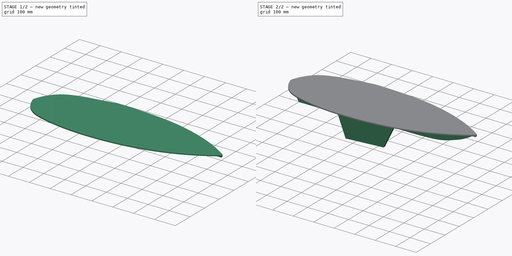
[diagram: build sequence overview — one tinted view per stage of 2, left to right]
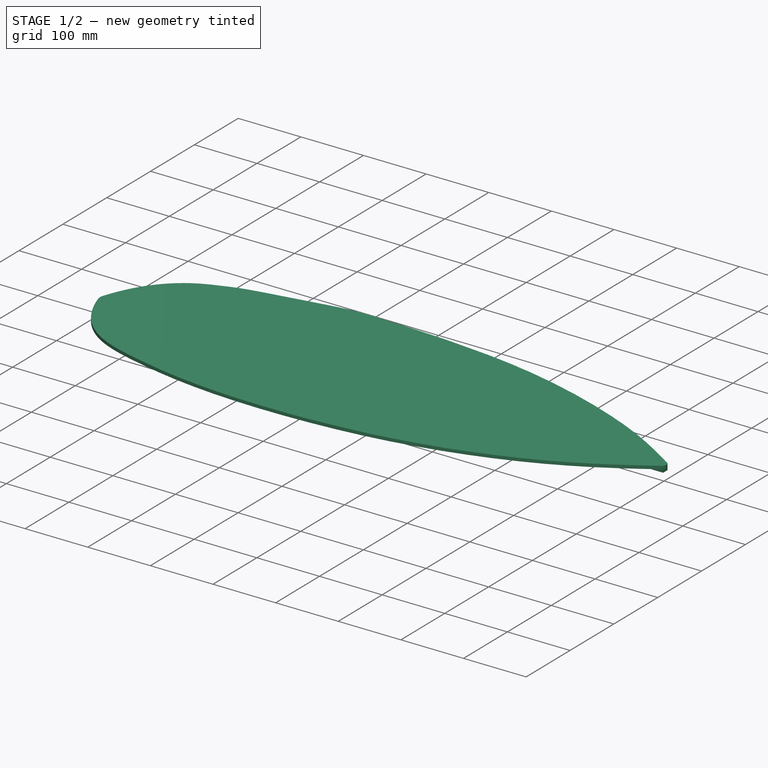
[diagram: stage 1 of 2 — iso view after this stage's code; geometry added in this stage tinted green]
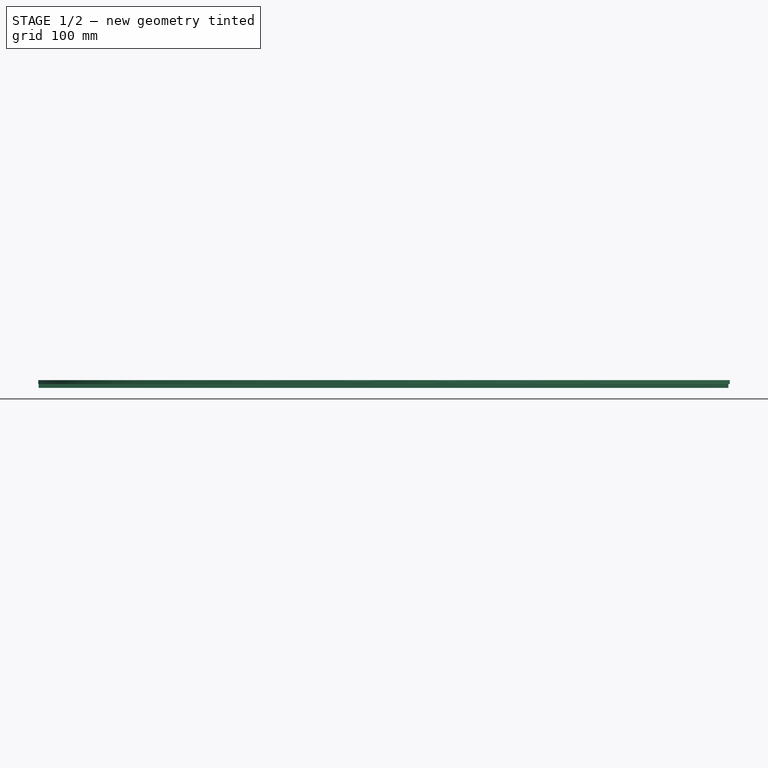
[diagram: stage 1 of 2 — front view after this stage's code; geometry added in this stage tinted green]
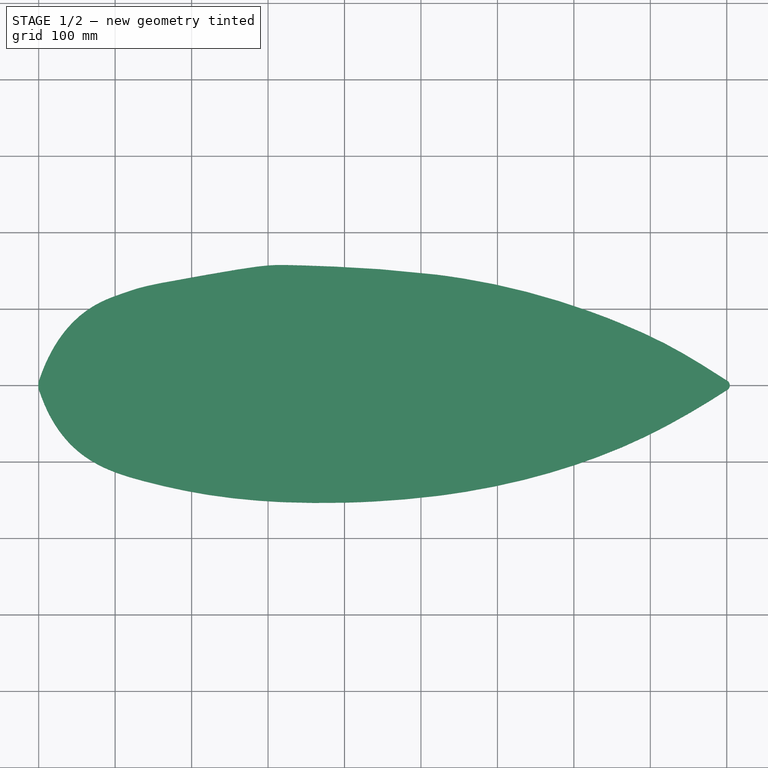
[diagram: stage 1 of 2 — top view after this stage's code; geometry added in this stage tinted green]
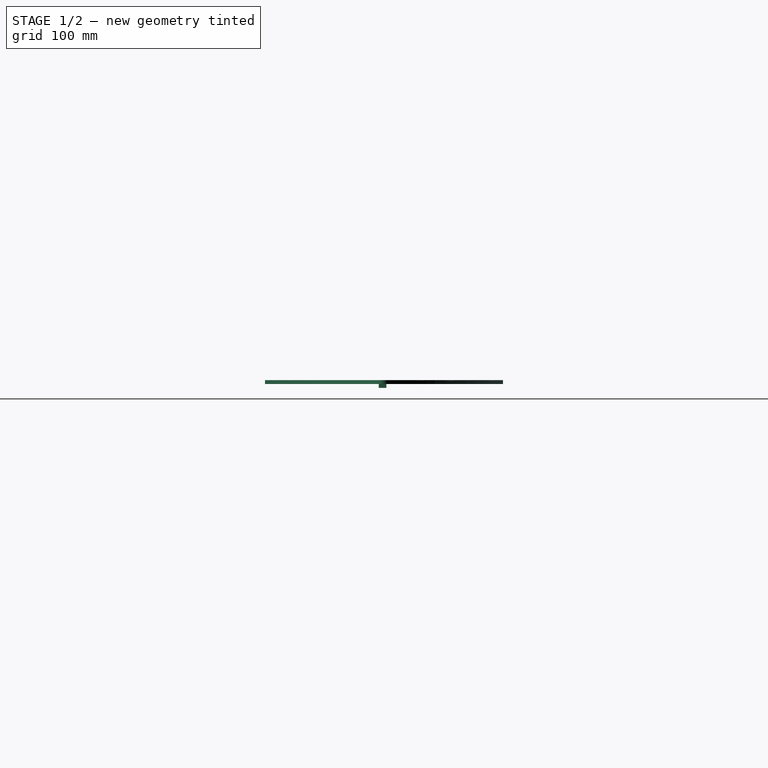
[diagram: stage 1 of 2 — right view after this stage's code; geometry added in this stage tinted green]
FCSTD DOCUMENT  (FreeCAD 0.19R24366 (Git))
Label: hull_v2
License: All rights reserved
LicenseURL: http://en.wikipedia.org/wiki/All_rights_reserved
objects: Sketcher::SketchObject×3, PartDesign::Pad×3, PartDesign::Body×1, App::Part×1, Part::FeaturePython×1, Part::Extrusion×1
note: 12 computed .brp shape members not serialized (recipe doc carries the construction recipe); baked Part::Feature solids carry a one-line shape summary decoded from their .brp

FEATURE [Sketcher::SketchObject] Sketch  label="DeckShape"
  FullyConstrained = false
  MapMode = 2
  Support = -> [Sketch]
  sketch-geometry (58):
    g0-g7: Circle x8 (B-spline internal-alignment scaffolding for g8; pole/knot coordinates omitted)
    g8: BSplineCurve PolesCount=9 KnotsCount=7 Degree=3 IsPeriodic=0
    g9-g14: GeomPoint x6 (B-spline internal-alignment scaffolding for g8; pole/knot coordinates omitted)
    g15: LineSegment StartX=28.628 StartY=91.8263 StartZ=0 EndX=28.628 EndY=0 EndZ=0
    g16: LineSegment StartX=138.526 StartY=130.345 StartZ=0 EndX=138.526 EndY=0 EndZ=0
    g17: LineSegment StartX=298.158 StartY=158.341 StartZ=0 EndX=298.158 EndY=0 EndZ=0
    g18: LineSegment StartX=538.022 StartY=150.79 StartZ=0 EndX=538.022 EndY=0 EndZ=0
    g19: LineSegment StartX=739.297 StartY=98.3557 StartZ=0 EndX=739.297 EndY=0 EndZ=0
    g20: LineSegment StartX=839.281 StartY=0 StartZ=0 EndX=839.281 EndY=45.6065 EndZ=0
    g21: LineSegment StartX=28.628 StartY=0 StartZ=0 EndX=28.628 EndY=-91.8263 EndZ=0
    g22: LineSegment StartX=138.526 StartY=0 StartZ=0 EndX=138.526 EndY=-130.345 EndZ=0
    g23: LineSegment StartX=298.158 StartY=0 StartZ=0 EndX=298.158 EndY=-158.341 EndZ=0
    g24: LineSegment StartX=538.022 StartY=0 StartZ=0 EndX=538.022 EndY=-150.79 EndZ=0
    g25: LineSegment StartX=739.297 StartY=0 StartZ=0 EndX=739.297 EndY=-98.3557 EndZ=0
    g26: LineSegment StartX=839.281 StartY=0 StartZ=0 EndX=839.281 EndY=-45.6065 EndZ=0
    g27: LineSegment StartX=902.149 StartY=5 StartZ=0 EndX=902.149 EndY=0 EndZ=0
    g28: LineSegment StartX=0 StartY=0 StartZ=0 EndX=0 EndY=5 EndZ=0
    g29: LineSegment StartX=0 StartY=0 StartZ=0 EndX=0 EndY=-5 EndZ=0
    g30: LineSegment StartX=902.149 StartY=0 StartZ=0 EndX=902.149 EndY=-5 EndZ=0
    g31-g38: Circle x8 (B-spline internal-alignment scaffolding for g39; pole/knot coordinates omitted)
    g39: BSplineCurve PolesCount=8 KnotsCount=6 Degree=3 IsPeriodic=0
    g40-g45: GeomPoint x6 (B-spline internal-alignment scaffolding for g39; pole/knot coordinates omitted)
    g46: Circle CenterX=0 CenterY=5 CenterZ=0 NormalX=0 NormalY=0 NormalZ=1 AngleXU=0 Radius=1
    g47: Circle CenterX=-1.25095 CenterY=0 CenterZ=0 NormalX=0 NormalY=0 NormalZ=1 AngleXU=0 Radius=1
    g48: Circle CenterX=0 CenterY=-5 CenterZ=0 NormalX=0 NormalY=0 NormalZ=1 AngleXU=0 Radius=1
    g49: BSplineCurve PolesCount=3 KnotsCount=2 Degree=2 IsPeriodic=0
    g50: GeomPoint X=0 Y=5 Z=0
    g51: GeomPoint X=0 Y=-5 Z=0
    g52: Circle CenterX=902.149 CenterY=5 CenterZ=0 NormalX=0 NormalY=0 NormalZ=1 AngleXU=0 Radius=1
    g53: Circle CenterX=905.726 CenterY=0 CenterZ=0 NormalX=0 NormalY=0 NormalZ=1 AngleXU=0 Radius=1
    g54: Circle CenterX=902.149 CenterY=-5 CenterZ=0 NormalX=0 NormalY=0 NormalZ=1 AngleXU=0 Radius=1
    g55: BSplineCurve PolesCount=3 KnotsCount=2 Degree=2 IsPeriodic=0
    g56: GeomPoint X=902.149 Y=5 Z=0
    g57: GeomPoint X=902.149 Y=-5 Z=0
  constraints (100):
    c: InternalAlignment(g0-g7 -> g8) x8
    c: InternalAlignment(g9-g14 -> g8) x6
    c: Coincident(g1,g15)
    c: Vertical(g15)
    c: Coincident(g2,g16)
    c: Vertical(g16)
    c: Coincident(g17,g4)
    c: PointOnObject(g17,g-1)
    c: Vertical(g17)
    c: Coincident(g18,g5)
    c: Coincident(g19,g6)
    c: PointOnObject(g19,g-1)
    c: Vertical(g19)
    c: PointOnObject(g20,g-1)
    c: Coincident(g20,g7)
    c: Vertical(g20)
    c: Coincident(g21,g15)
    c: Vertical(g21)
    c: Coincident(g22,g16)
    c: Vertical(g22)
    c: Coincident(g23,g17)
    c: Vertical(g23)
    c: Coincident(g24,g18)
    c: Vertical(g24)
    c: Coincident(g25,g19)
    c: Vertical(g25)
    c: Coincident(g26,g20)
    c: Vertical(g26)
    c: Equal(g21,g15)
    c: Equal(g16,g22)
    c: PointOnObject(g15,g-1)
    c: PointOnObject(g16,g-1)
    c: Equal(g23,g17)
    c: Equal(g24,g18)
    c: PointOnObject(g18,g-1)
    c: Equal(g25,g19)
    c: Equal(g26,g20)
    c: DistanceX(g8,g8) = 902.149
    c: Vertical(g18)
    c: DistanceY(g23,g4) = 316.682
    c: DistanceX(g8,g1) = 28.628
    c: DistanceX(g1,g2) = 109.898
    c: DistanceX(g2,g4) = 159.632
    c: DistanceX(g4,g5) = 239.865
    c: DistanceX(g5,g6) = 201.275
    c: DistanceX(g6,g7) = 99.9831
    c: Coincident(g27,g8)
    c: PointOnObject(g27,g-1)
    c: Vertical(g27)
    c: Coincident(g28,g8)
    c: Vertical(g28)
    c: Coincident(g28,g-1)
    c: Coincident(g29,g-1)
    c: PointOnObject(g29,g-2)
    c: Equal(g29,g28)
    c: DistanceY(g29,g8) = 10
    c: Coincident(g30,g27)
    c: Vertical(g30)
    c: Equal(g27,g30)
    c: DistanceY(g30,g8) = 10
    c: Coincident(g39,g29)
    c: Weight(g31) = 1
    c: Equal(g31,g32)
    c: Coincident(g32,g21)
    c: Equal(g31,g33)
    c: Coincident(g33,g22)
    c: Equal(g31,g34)
    c: Coincident(g34,g23)
    c: Equal(g31,g35)
    c: Coincident(g35,g24)
    c: Equal(g31,g36)
    c: Coincident(g36,g25)
    c: Equal(g31,g37)
    c: Coincident(g37,g26)
    c: Equal(g31,g38)
    c: Coincident(g39,g30)
    c: InternalAlignment(g31-g38 -> g39) x8
    c: InternalAlignment(g40-g45 -> g39) x6
    c: Coincident(g49,g8)
    c: Weight(g46) = 1
    c: Equal(g46,g47)
    c: PointOnObject(g47,g-1)
    c: Equal(g46,g48)
    c: Coincident(g49,g39)
    c: InternalAlignment(g46,g49)
    c: InternalAlignment(g47,g49)
    c: InternalAlignment(g48,g49)
    c: InternalAlignment(g50,g49)
    c: InternalAlignment(g51,g49)
    c: Coincident(g55,g8)
    c: Weight(g52) = 1
    c: Equal(g52,g53)
    c: PointOnObject(g53,g-1)
    c: Equal(g52,g54)
    c: Coincident(g55,g39)
    c: InternalAlignment(g52,g55)
    c: InternalAlignment(g53,g55)
    c: InternalAlignment(g54,g55)
    c: InternalAlignment(g56,g55)
    c: InternalAlignment(g57,g55)
FEATURE [PartDesign::Pad] Pad  label="DeckPad"
  Direction = (1,1,1)
  Length = 5
  Length2 = 100
  Profile = -> Sketch
  Type = 0
FEATURE [Sketcher::SketchObject] Sketch020
  ExternalGeometry = -> [Sketch]
  FullyConstrained = true
  MapMode = 5
  Placement = pos=(0,0,0) rot=(1,0,0;3.14159rad)
  Support = -> [Pad]
  sketch-geometry (4):
    g0: LineSegment StartX=0 StartY=5 StartZ=0 EndX=902.149 EndY=5 EndZ=0
    g1: LineSegment StartX=902.149 StartY=5 StartZ=0 EndX=902.149 EndY=-5 EndZ=0
    g2: LineSegment StartX=902.149 StartY=-5 StartZ=0 EndX=0 EndY=-5 EndZ=0
    g3: LineSegment StartX=0 StartY=-5 StartZ=0 EndX=0 EndY=5 EndZ=0
  constraints (9):
    c: Coincident(g0,g1)
    c: Coincident(g1,g2)
    c: Coincident(g2,g3)
    c: Coincident(g3,g0)
    c: Horizontal(g2)
    c: Vertical(g1)
    c: Coincident(g0,g-3)
    c: Coincident(g2,g-3)
    c: Coincident(g-4,g0)
FEATURE [PartDesign::Pad] Pad001
  BaseFeature = -> Pad
  Direction = (1,1,1)
  Length = 5
  Length2 = 100
  Profile = -> Sketch020
  Type = 0
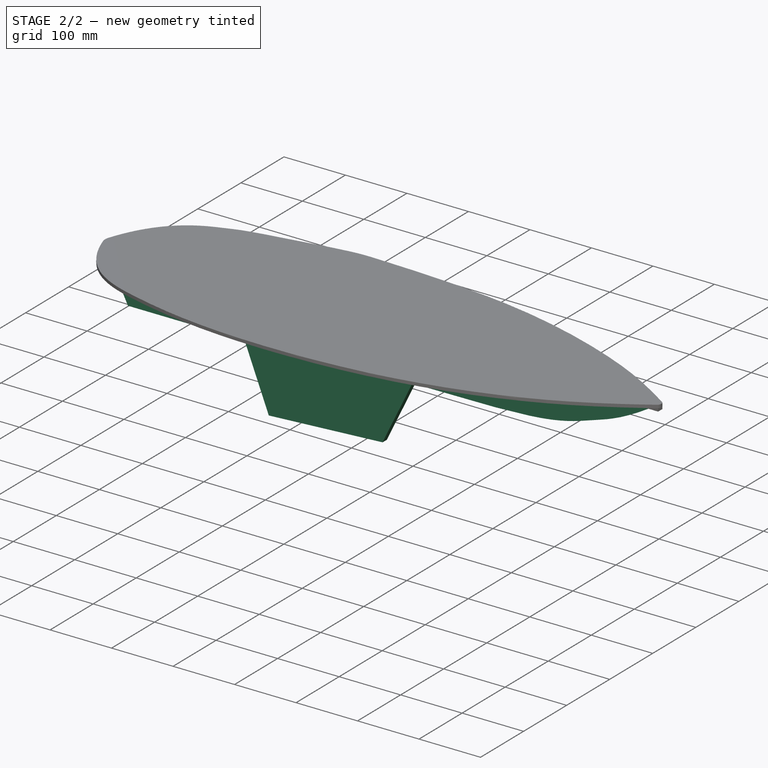
[diagram: stage 2 of 2 — iso view after this stage's code; geometry added in this stage tinted green]
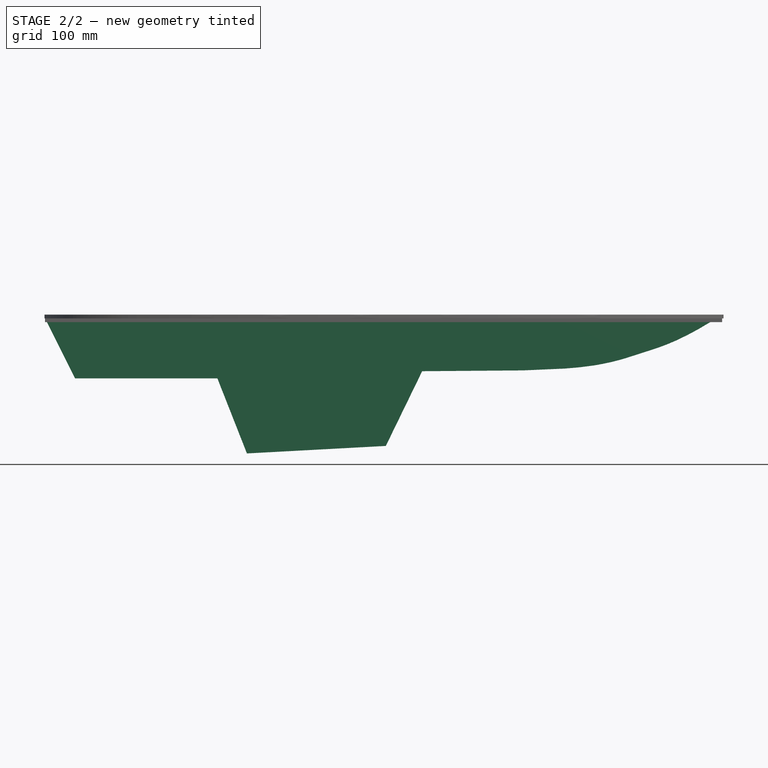
[diagram: stage 2 of 2 — front view after this stage's code; geometry added in this stage tinted green]
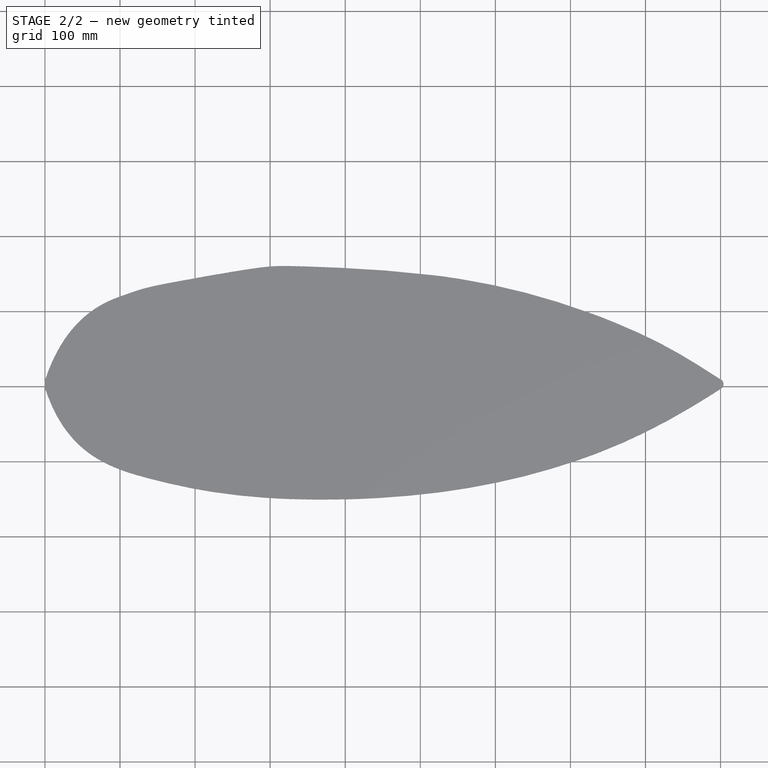
[diagram: stage 2 of 2 — top view after this stage's code; geometry added in this stage tinted green]
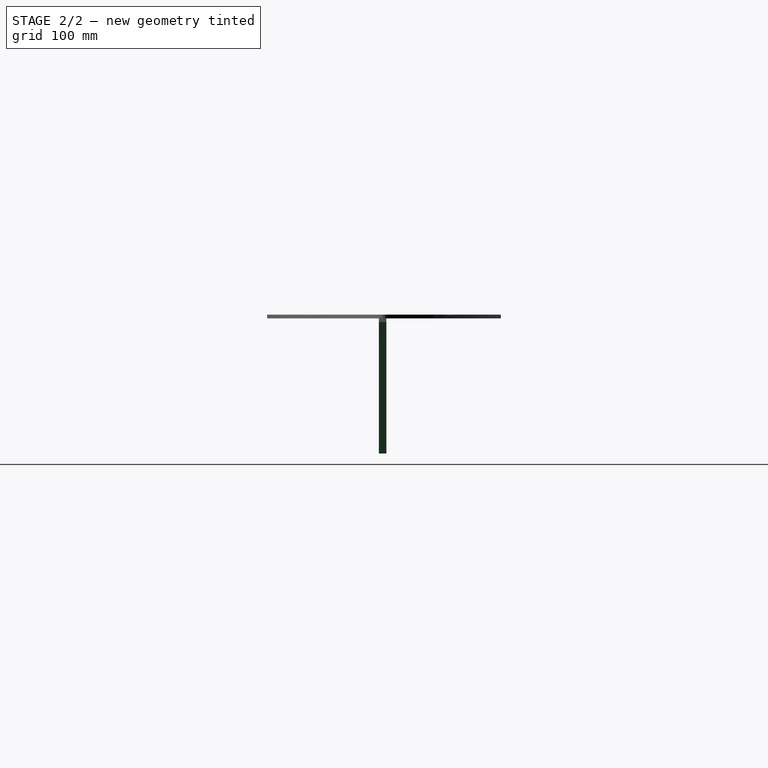
[diagram: stage 2 of 2 — right view after this stage's code; geometry added in this stage tinted green]
FEATURE [Sketcher::SketchObject] Sketch019  label="HullShapeVertical"
  ExternalGeometry = -> [Pad001]
  FullyConstrained = false
  MapMode = 5
  Placement = pos=(0,-5,0) rot=(1,0,0;1.5708rad)
  Support = -> [Pad001]
  sketch-geometry (17):
    g0: LineSegment StartX=502.517 StartY=-70.4601 StartZ=0 EndX=454.068 EndY=-170 EndZ=0
    g1: LineSegment StartX=454.068 StartY=-170 StartZ=0 EndX=269.068 EndY=-180 EndZ=0
    g2: LineSegment StartX=269.068 StartY=-180 StartZ=0 EndX=229.71 EndY=-80 EndZ=0
    g3-g8: Circle x6 (B-spline internal-alignment scaffolding for g9; pole/knot coordinates omitted)
    g9: BSplineCurve PolesCount=6 KnotsCount=4 Degree=3 IsPeriodic=0
    g10-g13: GeomPoint x4 (B-spline internal-alignment scaffolding for g9; pole/knot coordinates omitted)
    g14: LineSegment StartX=229.71 StartY=-80 StartZ=0 EndX=40 EndY=-80 EndZ=0
    g15: LineSegment StartX=-4e-16 StartY=0 StartZ=0 EndX=40 EndY=-80 EndZ=0
    g16: LineSegment StartX=902.149 StartY=5 StartZ=0 EndX=0 EndY=0 EndZ=0
  constraints (15):
    c: Coincident(g9,g0)
    c: Weight(g3) = 1
    c: Equal(g3, g4-g8) x5
    c: InternalAlignment(g3-g8 -> g9) x6
    c: InternalAlignment(g10-g13 -> g9) x4
    c: DistanceX(g1,g0) = 185
    c: DistanceY(g2,g-1) = 180
    c: Coincident(g1,g2)
    c: Coincident(g14,g2)
    c: Horizontal(g14)
    c: DistanceY(g1,g2) = 100
    c: Coincident(g15,g16)
    c: Coincident(g16,g9)
    c: Coincident(g1,g0)
    c: Coincident(g15,g14)
FEATURE [PartDesign::Pad] Pad002
  BaseFeature = -> Pad001
  Direction = (1,1,1)
  Length = 10
  Length2 = 100
  Profile = -> Sketch019
  Reversed = true
  Type = 0
FEATURE [PartDesign::Body] Body  label="HullBody"
  Group = -> [Sketch,Sketch019,Pad,Sketch020,Pad001,Pad002]
  Origin = -> Origin001
  Tip = -> Pad002
FEATURE [App::Part] Part  label="HullPart"
  Group = -> [Body]
  Origin = -> Origin
FEATURE [Part::FeaturePython] IsoCurve  # WARN: FeaturePython — macro-defined, semantics opaque (R4)
  Face = -> Pad002 [Face21]
  Mode = 1
  NumberU = 0
  NumberV = 14
  Orientation = 0
  Parameter = 0
FEATURE [Part::Extrusion] Extrude  label="RibExtrude"
  Base = -> IsoCurve
  Dir = (0,-1,0)
  DirMode = 0
  FaceMakerClass = Part::FaceMakerBullseye
  LengthFwd = 325
  LengthRev = 0
  Solid = false
  Symmetric = true
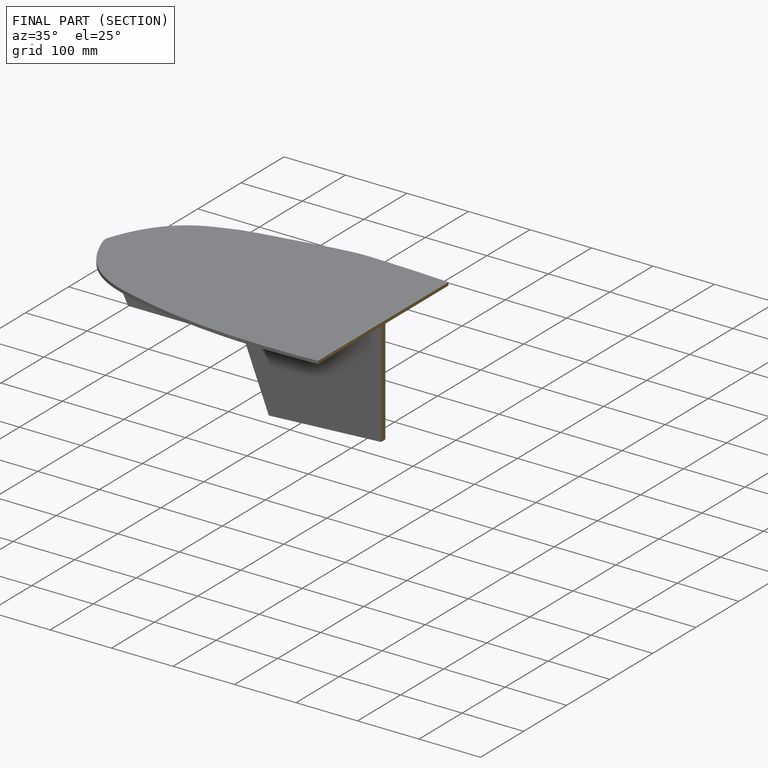
[diagram: finished part — half-section view (interior)]
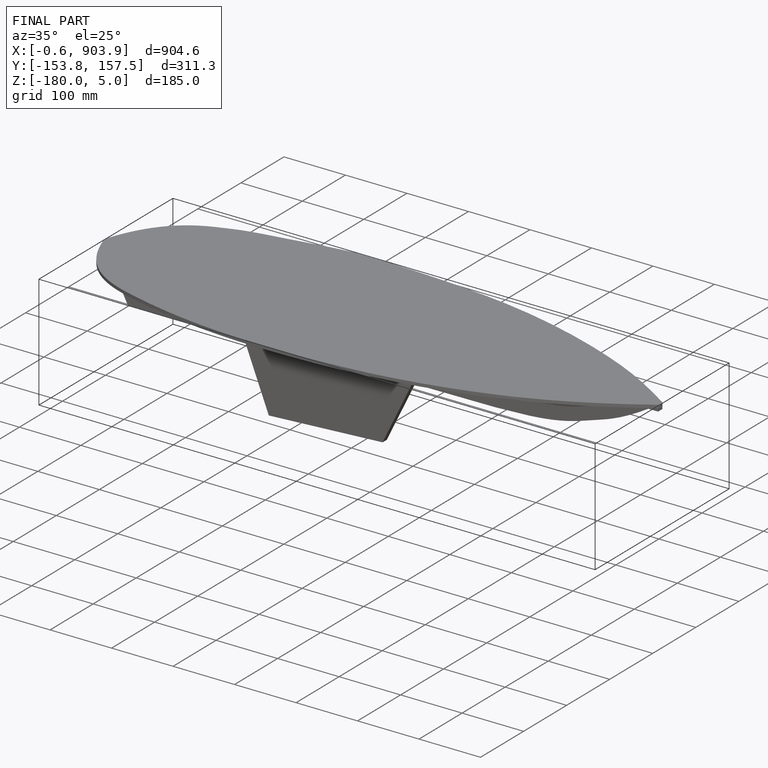
[diagram: finished part — iso view with bounding-box wireframe]
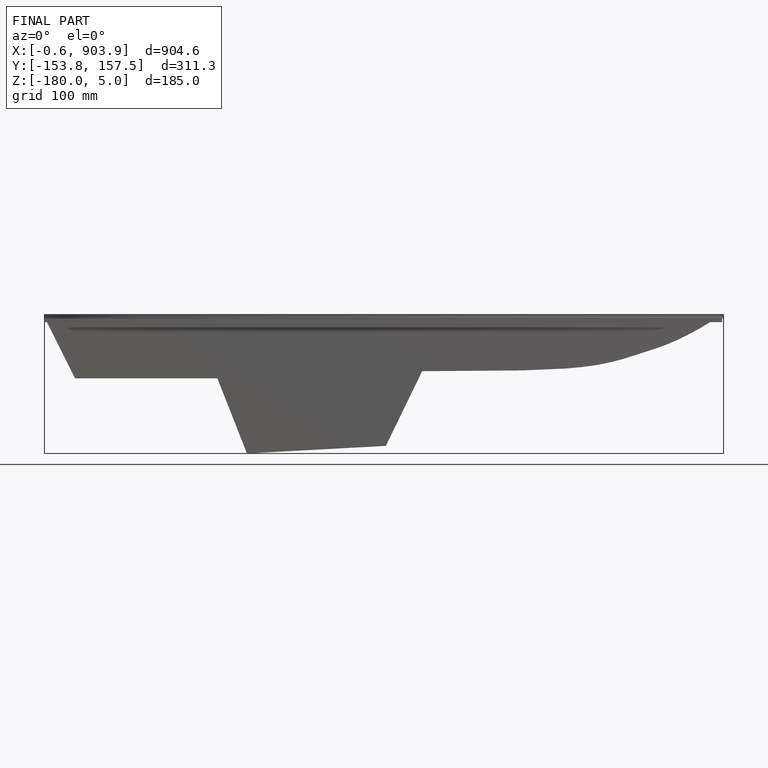
[diagram: finished part — front view with bounding-box wireframe]
